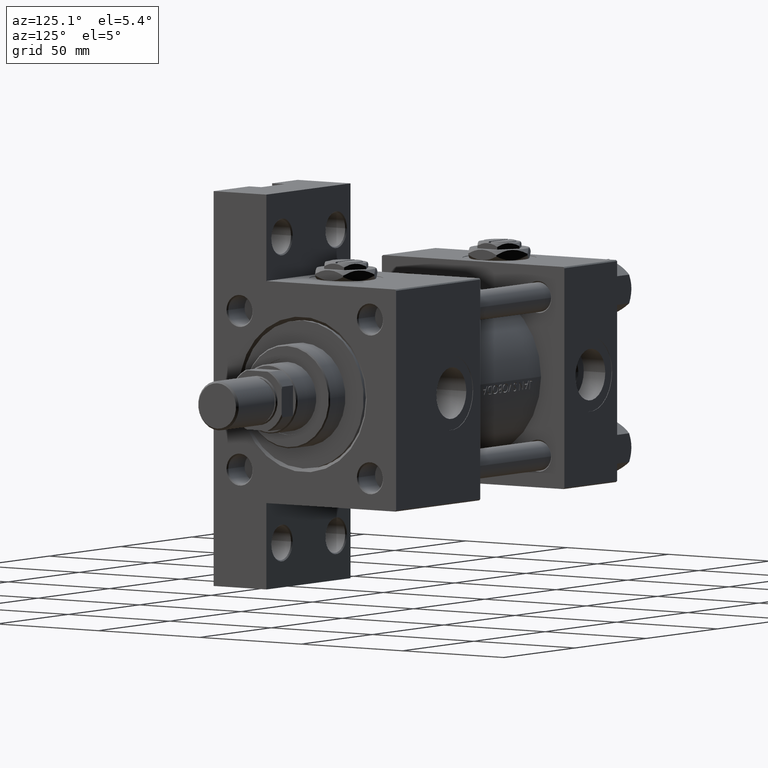
[diagram: clean part render]
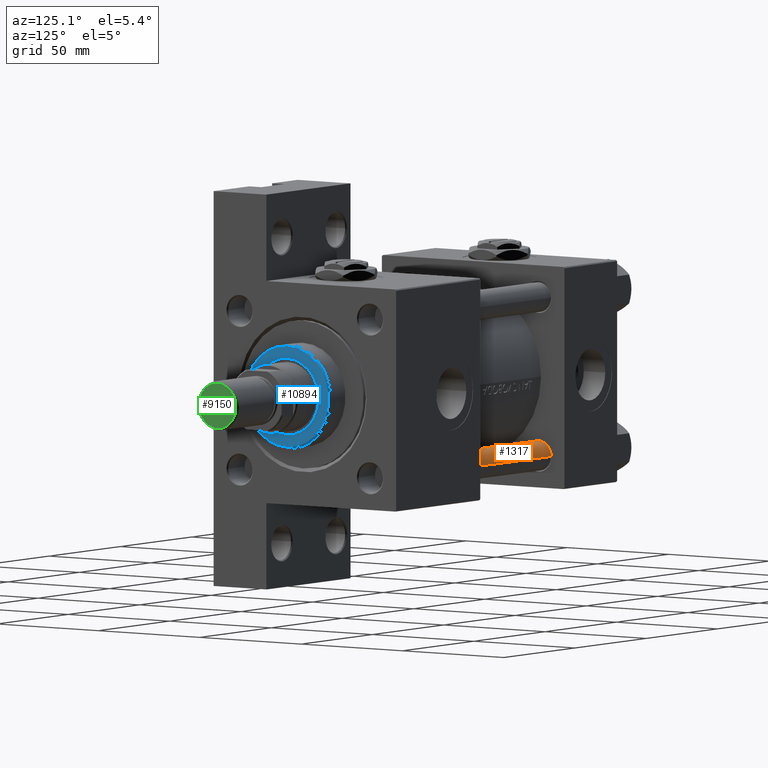
[diagram: same view with three faces highlighted in distinct colors, each labeled with its STEP entity id]
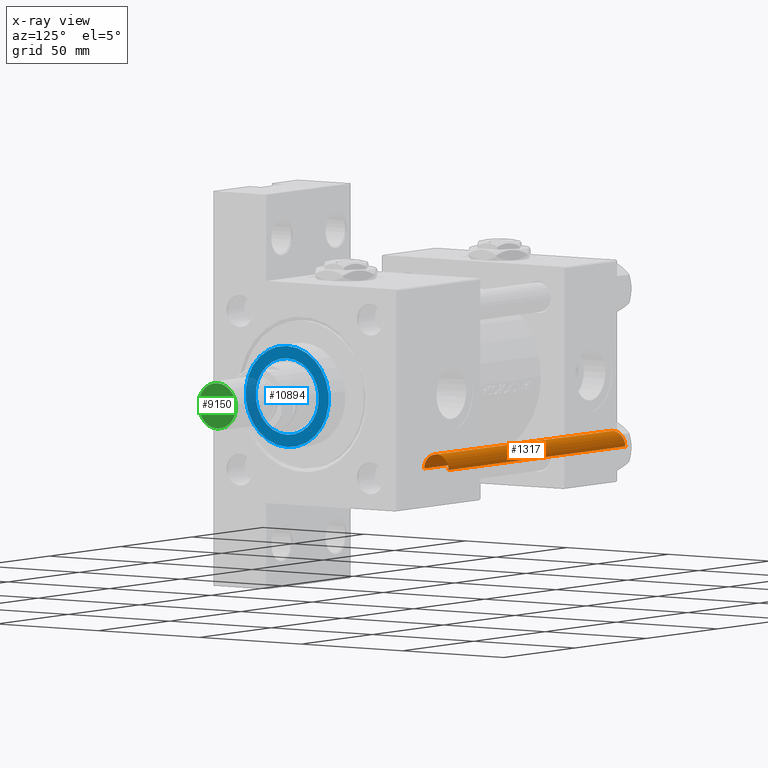
[diagram: x-ray of the same camera — body ghosted, the three highlighted faces saturated]
A machine part, auxiliary view with three faces highlighted in distinct colors.
The next image is the same camera in x-ray (body ghosted, the three faces saturated) — at least one of them is partly hidden behind the body in this view.
Their STEP definitions:

[orange] entity #1317 — the highlighted cylindrical surface (edge-blend (fillet) strip) has radius 6 mm, axis along (-1, -0, 0).
#92 = AXIS2_PLACEMENT_3D ( 'NONE', #5191, #20652, #2334 ) ;
#403 = CARTESIAN_POINT ( 'NONE',  ( -6.000000000000000888, 0.000000000000000000, 0.4999999999999865663 ) ) ;
#1317 = ADVANCED_FACE ( 'NONE', ( #20096 ), #8423, .T. ) ;
#1982 = EDGE_CURVE ( 'NONE', #2195, #42337, #4017, .T. ) ;
#2195 = VERTEX_POINT ( 'NONE', #41504 ) ;
#2334 = DIRECTION ( 'NONE',  ( 1.000000000000000000, 0.000000000000000000, 0.000000000000000000 ) ) ;
#4017 = LINE ( 'NONE', #46378, #11922 ) ;
#4075 = CARTESIAN_POINT ( 'NONE',  ( -6.000000000000000888, 0.000000000000000000, 124.5000000000000000 ) ) ;
#5191 = CARTESIAN_POINT ( 'NONE',  ( 0.000000000000000000, 0.000000000000000000, 0.4999999999999865663 ) ) ;
#5467 = AXIS2_PLACEMENT_3D ( 'NONE', #15525, #7923, #38860 ) ;
#6516 = DIRECTION ( 'NONE',  ( -0.000000000000000000, -0.000000000000000000, -1.000000000000000000 ) ) ;
#7923 = DIRECTION ( 'NONE',  ( -0.000000000000000000, -0.000000000000000000, -1.000000000000000000 ) ) ;
#8423 = CYLINDRICAL_SURFACE ( 'NONE', #5467, 6.000000000000000888 ) ;
#9968 = CARTESIAN_POINT ( 'NONE',  ( 6.000000000000000888, 7.347880794884120722E-16, 0.4999999999999865663 ) ) ;
#10858 = EDGE_CURVE ( 'NONE', #12442, #2195, #31258, .T. ) ;
#11578 = ORIENTED_EDGE ( 'NONE', *, *, #37254, .F. ) ;
#11922 = VECTOR ( 'NONE', #26579, 1000.000000000000000 ) ;
#12442 = VERTEX_POINT ( 'NONE', #4075 ) ;
#15525 = CARTESIAN_POINT ( 'NONE',  ( 0.000000000000000000, 0.000000000000000000, 125.0000000000000000 ) ) ;
#16547 = VERTEX_POINT ( 'NONE', #403 ) ;
#17661 = VECTOR ( 'NONE', #6516, 1000.000000000000000 ) ;
#20096 = FACE_OUTER_BOUND ( 'NONE', #32728, .T. ) ;
#20652 = DIRECTION ( 'NONE',  ( -0.000000000000000000, -0.000000000000000000, 1.000000000000000000 ) ) ;
#21959 = DIRECTION ( 'NONE',  ( 0.000000000000000000, 0.000000000000000000, -1.000000000000000000 ) ) ;
#22355 = AXIS2_PLACEMENT_3D ( 'NONE', #41245, #21959, #37418 ) ;
#25773 = CARTESIAN_POINT ( 'NONE',  ( -6.000000000000000888, 0.000000000000000000, 125.0000000000000000 ) ) ;
#26579 = DIRECTION ( 'NONE',  ( -0.000000000000000000, -0.000000000000000000, -1.000000000000000000 ) ) ;
#31258 = CIRCLE ( 'NONE', #22355, 6.000000000000000888 ) ;
#32728 = EDGE_LOOP ( 'NONE', ( #34052, #41660, #39751, #11578 ) ) ;
#34052 = ORIENTED_EDGE ( 'NONE', *, *, #10858, .T. ) ;
#37254 = EDGE_CURVE ( 'NONE', #12442, #16547, #49390, .T. ) ;
#37418 = DIRECTION ( 'NONE',  ( 1.000000000000000000, 0.000000000000000000, 0.000000000000000000 ) ) ;
#38860 = DIRECTION ( 'NONE',  ( -1.000000000000000000, 0.000000000000000000, 0.000000000000000000 ) ) ;
#39751 = ORIENTED_EDGE ( 'NONE', *, *, #46959, .T. ) ;
#40610 = CIRCLE ( 'NONE', #92, 6.000000000000000888 ) ;
#41245 = CARTESIAN_POINT ( 'NONE',  ( 0.000000000000000000, 0.000000000000000000, 124.5000000000000000 ) ) ;
#41504 = CARTESIAN_POINT ( 'NONE',  ( 6.000000000000000888, 7.347880794884120722E-16, 124.5000000000000000 ) ) ;
#41660 = ORIENTED_EDGE ( 'NONE', *, *, #1982, .T. ) ;
#42337 = VERTEX_POINT ( 'NONE', #9968 ) ;
#46378 = CARTESIAN_POINT ( 'NONE',  ( 6.000000000000000888, 7.347880794884120722E-16, 125.0000000000000000 ) ) ;
#46959 = EDGE_CURVE ( 'NONE', #42337, #16547, #40610, .T. ) ;
#49390 = LINE ( 'NONE', #25773, #17661 ) ;

[blue] entity #10894 — the highlighted planar face has unit normal (1, 0, 0).
#2570 = AXIS2_PLACEMENT_3D ( 'NONE', #38944, #20429, #28281 ) ;
#3205 = ORIENTED_EDGE ( 'NONE', *, *, #47584, .T. ) ;
#4190 = PLANE ( 'NONE',  #37773 ) ;
#4278 = CARTESIAN_POINT ( 'NONE',  ( -15.50000000000000000, 1.898202538678397557E-15, 39.69999999999999574 ) ) ;
#4955 = CIRCLE ( 'NONE', #2570, 20.50000000000000355 ) ;
#6259 = DIRECTION ( 'NONE',  ( 1.000000000000000000, 0.000000000000000000, 0.000000000000000000 ) ) ;
#6289 = VERTEX_POINT ( 'NONE', #12792 ) ;
#10300 = CARTESIAN_POINT ( 'NONE',  ( 0.000000000000000000, 0.000000000000000000, 39.69999999999999574 ) ) ;
#10894 = ADVANCED_FACE ( 'NONE', ( #30316, #18914 ), #4190, .T. ) ;
#12636 = DIRECTION ( 'NONE',  ( 1.000000000000000000, 0.000000000000000000, 0.000000000000000000 ) ) ;
#12792 = CARTESIAN_POINT ( 'NONE',  ( 15.50000000000000000, 0.000000000000000000, 39.69999999999999574 ) ) ;
#13373 = CIRCLE ( 'NONE', #39304, 15.50000000000000000 ) ;
#13388 = CARTESIAN_POINT ( 'NONE',  ( 0.000000000000000000, 0.000000000000000000, 39.69999999999999574 ) ) ;
#13762 = VERTEX_POINT ( 'NONE', #4278 ) ;
#16198 = DIRECTION ( 'NONE',  ( 0.000000000000000000, 0.000000000000000000, 1.000000000000000000 ) ) ;
#16324 = CARTESIAN_POINT ( 'NONE',  ( -20.50000000000000355, 0.000000000000000000, 39.69999999999999574 ) ) ;
#17384 = DIRECTION ( 'NONE',  ( 0.000000000000000000, 0.000000000000000000, 1.000000000000000000 ) ) ;
#17438 = VERTEX_POINT ( 'NONE', #33345 ) ;
#17893 = CARTESIAN_POINT ( 'NONE',  ( 0.000000000000000000, 0.000000000000000000, 39.69999999999999574 ) ) ;
#18914 = FACE_OUTER_BOUND ( 'NONE', #36133, .T. ) ;
#20429 = DIRECTION ( 'NONE',  ( 0.000000000000000000, 0.000000000000000000, 1.000000000000000000 ) ) ;
#22957 = DIRECTION ( 'NONE',  ( 0.000000000000000000, 0.000000000000000000, 1.000000000000000000 ) ) ;
#23262 = EDGE_CURVE ( 'NONE', #13762, #6289, #13373, .T. ) ;
#24934 = ORIENTED_EDGE ( 'NONE', *, *, #25127, .T. ) ;
#25127 = EDGE_CURVE ( 'NONE', #45645, #17438, #32772, .T. ) ;
#26312 = ORIENTED_EDGE ( 'NONE', *, *, #23262, .F. ) ;
#26766 = CARTESIAN_POINT ( 'NONE',  ( 0.000000000000000000, 0.000000000000000000, 39.69999999999999574 ) ) ;
#27509 = DIRECTION ( 'NONE',  ( 1.000000000000000000, 0.000000000000000000, -0.000000000000000000 ) ) ;
#28281 = DIRECTION ( 'NONE',  ( 1.000000000000000000, 0.000000000000000000, 0.000000000000000000 ) ) ;
#30316 = FACE_BOUND ( 'NONE', #47854, .T. ) ;
#31860 = EDGE_CURVE ( 'NONE', #6289, #13762, #35277, .T. ) ;
#32772 = CIRCLE ( 'NONE', #42527, 20.50000000000000355 ) ;
#32854 = AXIS2_PLACEMENT_3D ( 'NONE', #13388, #16198, #12636 ) ;
#33345 = CARTESIAN_POINT ( 'NONE',  ( 20.50000000000000355, 2.541142108230758269E-15, 39.69999999999999574 ) ) ;
#35277 = CIRCLE ( 'NONE', #32854, 15.50000000000000000 ) ;
#36133 = EDGE_LOOP ( 'NONE', ( #24934, #3205 ) ) ;
#36889 = DIRECTION ( 'NONE',  ( 1.000000000000000000, 0.000000000000000000, 0.000000000000000000 ) ) ;
#37773 = AXIS2_PLACEMENT_3D ( 'NONE', #26766, #22957, #27509 ) ;
#38944 = CARTESIAN_POINT ( 'NONE',  ( 0.000000000000000000, 0.000000000000000000, 39.69999999999999574 ) ) ;
#39304 = AXIS2_PLACEMENT_3D ( 'NONE', #17893, #17384, #36889 ) ;
#41753 = DIRECTION ( 'NONE',  ( 0.000000000000000000, 0.000000000000000000, 1.000000000000000000 ) ) ;
#42385 = ORIENTED_EDGE ( 'NONE', *, *, #31860, .F. ) ;
#42527 = AXIS2_PLACEMENT_3D ( 'NONE', #10300, #41753, #6259 ) ;
#45645 = VERTEX_POINT ( 'NONE', #16324 ) ;
#47584 = EDGE_CURVE ( 'NONE', #17438, #45645, #4955, .T. ) ;
#47854 = EDGE_LOOP ( 'NONE', ( #42385, #26312 ) ) ;

[green] entity #9150 — the highlighted planar face has unit normal (-1, 0, 0).
#1336 = AXIS2_PLACEMENT_3D ( 'NONE', #45484, #3384, #10721 ) ;
#3384 = DIRECTION ( 'NONE',  ( -0.000000000000000000, -0.000000000000000000, -1.000000000000000000 ) ) ;
#9150 = ADVANCED_FACE ( 'NONE', ( #28867 ), #28370, .F. ) ;
#10721 = DIRECTION ( 'NONE',  ( 1.000000000000000000, 0.000000000000000000, 0.000000000000000000 ) ) ;
#11425 = EDGE_CURVE ( 'NONE', #35161, #44767, #28883, .T. ) ;
#15720 = CIRCLE ( 'NONE', #28712, 9.199999999999992184 ) ;
#16694 = DIRECTION ( 'NONE',  ( 0.000000000000000000, 0.000000000000000000, 1.000000000000000000 ) ) ;
#18219 = CARTESIAN_POINT ( 'NONE',  ( 0.000000000000000000, 0.000000000000000000, 0.000000000000000000 ) ) ;
#23049 = ORIENTED_EDGE ( 'NONE', *, *, #11425, .T. ) ;
#25067 = DIRECTION ( 'NONE',  ( 1.000000000000000000, 0.000000000000000000, -0.000000000000000000 ) ) ;
#28370 = PLANE ( 'NONE',  #45005 ) ;
#28441 = EDGE_CURVE ( 'NONE', #44767, #35161, #15720, .T. ) ;
#28712 = AXIS2_PLACEMENT_3D ( 'NONE', #18219, #46123, #30626 ) ;
#28867 = FACE_OUTER_BOUND ( 'NONE', #44337, .T. ) ;
#28883 = CIRCLE ( 'NONE', #1336, 9.199999999999992184 ) ;
#30626 = DIRECTION ( 'NONE',  ( 1.000000000000000000, 0.000000000000000000, 0.000000000000000000 ) ) ;
#35161 = VERTEX_POINT ( 'NONE', #46572 ) ;
#35590 = CARTESIAN_POINT ( 'NONE',  ( -9.199999999999992184, 1.175660927181458645E-15, 0.000000000000000000 ) ) ;
#44337 = EDGE_LOOP ( 'NONE', ( #23049, #45050 ) ) ;
#44767 = VERTEX_POINT ( 'NONE', #35590 ) ;
#45005 = AXIS2_PLACEMENT_3D ( 'NONE', #47920, #16694, #25067 ) ;
#45050 = ORIENTED_EDGE ( 'NONE', *, *, #28441, .T. ) ;
#45484 = CARTESIAN_POINT ( 'NONE',  ( 0.000000000000000000, 0.000000000000000000, 0.000000000000000000 ) ) ;
#46123 = DIRECTION ( 'NONE',  ( -0.000000000000000000, -0.000000000000000000, -1.000000000000000000 ) ) ;
#46572 = CARTESIAN_POINT ( 'NONE',  ( 9.199999999999992184, 0.000000000000000000, 0.000000000000000000 ) ) ;
#47920 = CARTESIAN_POINT ( 'NONE',  ( 0.000000000000000000, 0.000000000000000000, 0.000000000000000000 ) ) ;